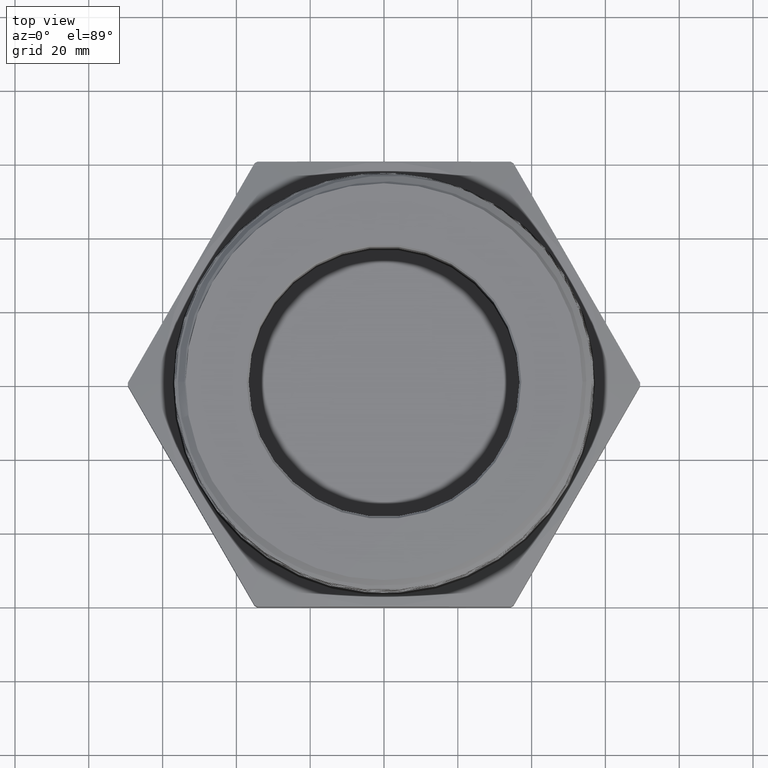
[diagram: clean part render]
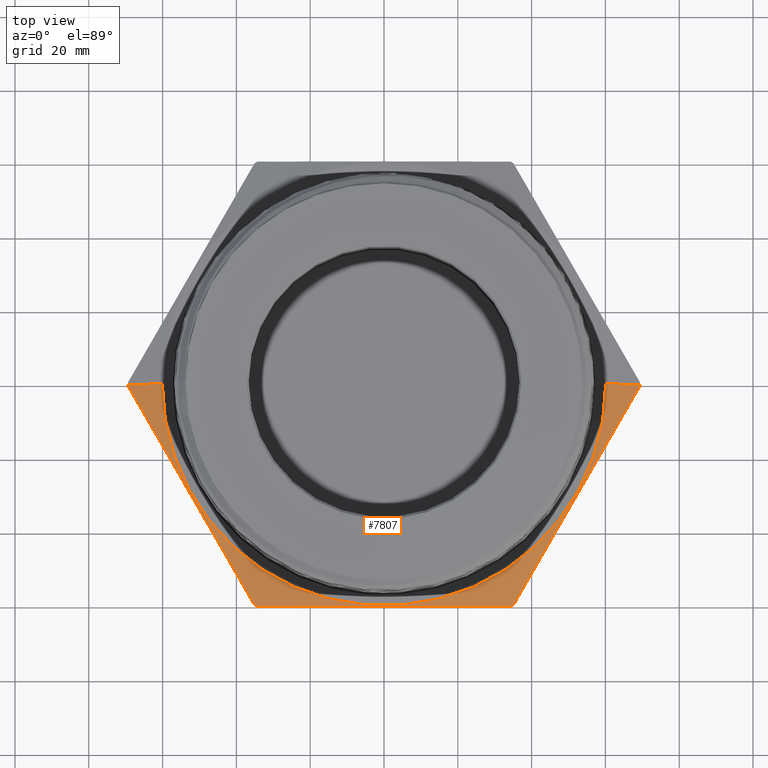
[diagram: same view with one face highlighted and labeled with its STEP entity id]
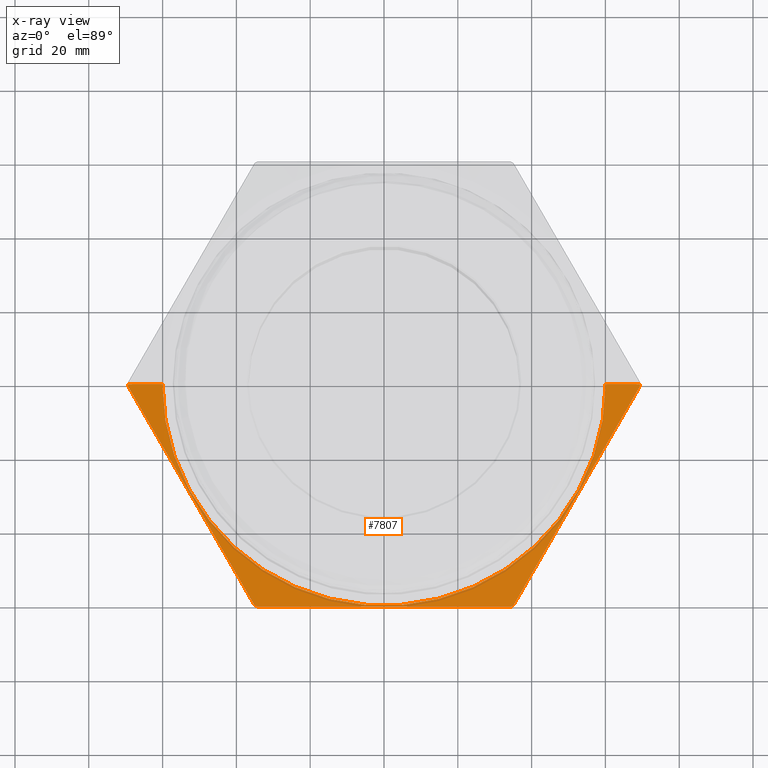
[diagram: x-ray of the same camera — body ghosted, the highlighted face saturated]
A machine part, top view. The second image highlights one B-rep face of the part: STEP entity #7807.
The next image is the same camera in x-ray: the body ghosted, the highlighted face saturated — about 0% of this face is hidden behind the body in this view.
In plain terms, the highlighted conical surface has half-angle 78 deg.
Its self-contained STEP definition (entity closure, byte-faithful):
#8 = B_SPLINE_CURVE_WITH_KNOTS ( 'NONE', 3,
 ( #7771, #7764, #7759, #7773, #7774, #7775, #7776, #7777, #7778 ),
 .UNSPECIFIED., .F., .F.,
 ( 4, 2, 1, 2, 4 ),
 ( 1.902859322829075700E-006, 0.01716082044511951400, 0.03431973803091619600, 0.05147865561671289400, 0.06863757320250960000 ),
 .UNSPECIFIED. ) ;
#10 = B_SPLINE_CURVE_WITH_KNOTS ( 'NONE', 3,
 ( #7781, #7780, #7770, #7782, #7783, #7784, #7785, #7786, #7727, #2749 ),
 .UNSPECIFIED., .F., .F.,
 ( 4, 2, 2, 2, 4 ),
 ( 0.1321518283053316200, 0.1493624693089034300, 0.1665731103124752400, 0.1837837513160470400, 0.2009943923196188500 ),
 .UNSPECIFIED. ) ;
#15 = B_SPLINE_CURVE_WITH_KNOTS ( 'NONE', 3,
 ( #2751, #2753, #2754, #2755, #2756, #2757, #2758, #2759, #2760 ),
 .UNSPECIFIED., .F., .F.,
 ( 4, 2, 1, 2, 4 ),
 ( 1.902859322808944500E-006, 0.01716082044511948300, 0.03431973803091615400, 0.05147865561671282500, 0.06863757320250947500 ),
 .UNSPECIFIED. ) ;
#593 = EDGE_CURVE ( 'NONE', #2007, #2011, #7986, .T. ) ;
#596 = EDGE_CURVE ( 'NONE', #1953, #2003, #7990, .T. ) ;
#603 = EDGE_CURVE ( 'NONE', #2008, #1958, #8, .T. ) ;
#604 = EDGE_CURVE ( 'NONE', #2011, #2004, #10, .T. ) ;
#605 = EDGE_CURVE ( 'NONE', #2003, #2007, #15, .T. ) ;
#643 = AXIS2_PLACEMENT_3D ( 'NONE', #5589, #5590, #5591 ) ;
#644 = AXIS2_PLACEMENT_3D ( 'NONE', #7755, #7756, #7757 ) ;
#685 = AXIS2_PLACEMENT_3D ( 'NONE', #2356, #2357, #2358 ) ;
#693 = AXIS2_PLACEMENT_3D ( 'NONE', #4129, #4130, #4131 ) ;
#696 = AXIS2_PLACEMENT_3D ( 'NONE', #4144, #4145, #4146 ) ;
#702 = AXIS2_PLACEMENT_3D ( 'NONE', #4186, #4187, #4185 ) ;
#1883 = ORIENTED_EDGE ( 'NONE', *, *, #605, .F. ) ;
#1884 = ORIENTED_EDGE ( 'NONE', *, *, #596, .F. ) ;
#1942 = VERTEX_POINT ( 'NONE', #2630 ) ;
#1953 = VERTEX_POINT ( 'NONE', #2643 ) ;
#1956 = VERTEX_POINT ( 'NONE', #2646 ) ;
#1958 = VERTEX_POINT ( 'NONE', #2648 ) ;
#2003 = VERTEX_POINT ( 'NONE', #2693 ) ;
#2004 = VERTEX_POINT ( 'NONE', #2694 ) ;
#2007 = VERTEX_POINT ( 'NONE', #2697 ) ;
#2008 = VERTEX_POINT ( 'NONE', #2698 ) ;
#2011 = VERTEX_POINT ( 'NONE', #2701 ) ;
#2033 = VERTEX_POINT ( 'NONE', #2723 ) ;
#2159 = EDGE_LOOP ( 'NONE', ( #7895, #7896, #7897, #7898, #7899, #7900, #7901, #7902, #1883, #1884 ) ) ;
#2347 = CARTESIAN_POINT ( 'NONE',  ( -2.365000000000000200, 0.0000000000000000000, 0.6700000000000000400 ) ) ;
#2352 = DIRECTION ( 'NONE',  ( -0.9781476007338071300, 0.0000000000000000000, -0.2079116908177526300 ) ) ;
#2356 = CARTESIAN_POINT ( 'NONE',  ( 7.248730824387821900E-017, 0.0000000000000000000, 0.5919037904998144500 ) ) ;
#2357 = DIRECTION ( 'NONE',  ( -1.224646799147351200E-016, -0.0000000000000000000, -1.000000000000000000 ) ) ;
#2358 = DIRECTION ( 'NONE',  ( -1.000000000000000000, 0.0000000000000000000, 1.249741169789656700E-016 ) ) ;
#2565 = DIRECTION ( 'NONE',  ( 0.9781476007338069100, 1.197885328332319900E-016, -0.2079116908177528500 ) ) ;
#2570 = CARTESIAN_POINT ( 'NONE',  ( 2.365000000000000200, 2.896289679983490900E-016, 0.6699999999999996000 ) ) ;
#2630 = CARTESIAN_POINT ( 'NONE',  ( 2.365000000000000200, 2.896289679983490900E-016, 0.6699999999999996000 ) ) ;
#2643 = CARTESIAN_POINT ( 'NONE',  ( 2.732413778650721900, 3.346241787970731400E-016, 0.5919037904998141200 ) ) ;
#2646 = CARTESIAN_POINT ( 'NONE',  ( -2.732413778650721900, 0.0000000000000000000, 0.5919037904998147900 ) ) ;
#2648 = CARTESIAN_POINT ( 'NONE',  ( -2.732358270436729100, -0.01741665112256062000, 0.5919037904998147900 ) ) ;
#2693 = CARTESIAN_POINT ( 'NONE',  ( 2.732358270436729100, -0.01741665112256157400, 0.5919037904998141200 ) ) ;
#2694 = CARTESIAN_POINT ( 'NONE',  ( -1.351095872897375400, -2.374999999999999600, 0.5919037904998145600 ) ) ;
#2697 = CARTESIAN_POINT ( 'NONE',  ( 1.381262397539353200, -2.357583348877438000, 0.5919037904998143400 ) ) ;
#2698 = CARTESIAN_POINT ( 'NONE',  ( -1.381262397539350500, -2.357583348877439800, 0.5919037904998145600 ) ) ;
#2701 = CARTESIAN_POINT ( 'NONE',  ( 1.351095872897375400, -2.374999999999999600, 0.5919037904998143400 ) ) ;
#2723 = CARTESIAN_POINT ( 'NONE',  ( -2.365000000000000200, 0.0000000000000000000, 0.6700000000000000400 ) ) ;
#2749 = CARTESIAN_POINT ( 'NONE',  ( -1.351095872897375400, -2.374999999999999600, 0.5919037904998145600 ) ) ;
#2751 = CARTESIAN_POINT ( 'NONE',  ( 2.732358270436729100, -0.01741665112256157400, 0.5919037904998141200 ) ) ;
#2753 = CARTESIAN_POINT ( 'NONE',  ( 2.619766947695282100, -0.2124305426021345100, 0.6155711132881341900 ) ) ;
#2754 = CARTESIAN_POINT ( 'NONE',  ( 2.507175624953833700, -0.4074444340817075000, 0.6347547542852914900 ) ) ;
#2755 = CARTESIAN_POINT ( 'NONE',  ( 2.281992979470937500, -0.7974722170408534700, 0.6609448966257888100 ) ) ;
#2756 = CARTESIAN_POINT ( 'NONE',  ( 2.056810333988041300, -1.187500000000000400, 0.6748039721408104500 ) ) ;
#2757 = CARTESIAN_POINT ( 'NONE',  ( 1.831627688505145000, -1.577527782959145000, 0.6609448966257888100 ) ) ;
#2758 = CARTESIAN_POINT ( 'NONE',  ( 1.606445043022249900, -1.967555565918291700, 0.6347547542852914900 ) ) ;
#2759 = CARTESIAN_POINT ( 'NONE',  ( 1.493853720280801100, -2.162569457397864000, 0.6155711132881341900 ) ) ;
#2760 = CARTESIAN_POINT ( 'NONE',  ( 1.381262397539353200, -2.357583348877438000, 0.5919037904998143400 ) ) ;
#3376 = CIRCLE ( 'NONE', #693, 2.365000000000000200 ) ;
#3404 = CIRCLE ( 'NONE', #696, 2.732413778650721900 ) ;
#3467 = FACE_OUTER_BOUND ( 'NONE', #2159, .T. ) ;
#3482 = CONICAL_SURFACE ( 'NONE', #702, 2.365000000000000200, 1.361356816555583800 ) ;
#3657 = EDGE_CURVE ( 'NONE', #1942, #1953, #8071, .T. ) ;
#3665 = EDGE_CURVE ( 'NONE', #2033, #1956, #8080, .T. ) ;
#3666 = EDGE_CURVE ( 'NONE', #1958, #1956, #8083, .T. ) ;
#3734 = EDGE_CURVE ( 'NONE', #1942, #2033, #3376, .T. ) ;
#3738 = EDGE_CURVE ( 'NONE', #2004, #2008, #3404, .T. ) ;
#4129 = CARTESIAN_POINT ( 'NONE',  ( 8.205133554287250800E-017, 0.0000000000000000000, 0.6699999999999998200 ) ) ;
#4130 = DIRECTION ( 'NONE',  ( -1.224646799147351200E-016, -0.0000000000000000000, -1.000000000000000000 ) ) ;
#4131 = DIRECTION ( 'NONE',  ( -1.000000000000000000, 0.0000000000000000000, 1.155115430724846900E-016 ) ) ;
#4144 = CARTESIAN_POINT ( 'NONE',  ( 7.248730824387821900E-017, 0.0000000000000000000, 0.5919037904998144500 ) ) ;
#4145 = DIRECTION ( 'NONE',  ( -1.224646799147351200E-016, -0.0000000000000000000, -1.000000000000000000 ) ) ;
#4146 = DIRECTION ( 'NONE',  ( -1.000000000000000000, 0.0000000000000000000, 1.249741169789656700E-016 ) ) ;
#4185 = DIRECTION ( 'NONE',  ( -1.000000000000000000, 0.0000000000000000000, 1.155115430724846900E-016 ) ) ;
#4186 = CARTESIAN_POINT ( 'NONE',  ( 8.205133554287250800E-017, 0.0000000000000000000, 0.6699999999999998200 ) ) ;
#4187 = DIRECTION ( 'NONE',  ( -1.224646799147351200E-016, -0.0000000000000000000, -1.000000000000000000 ) ) ;
#5589 = CARTESIAN_POINT ( 'NONE',  ( 7.248730824387821900E-017, 0.0000000000000000000, 0.5919037904998144500 ) ) ;
#5590 = DIRECTION ( 'NONE',  ( -1.224646799147351200E-016, -0.0000000000000000000, -1.000000000000000000 ) ) ;
#5591 = DIRECTION ( 'NONE',  ( -1.000000000000000000, 0.0000000000000000000, 1.249741169789656700E-016 ) ) ;
#7727 = CARTESIAN_POINT ( 'NONE',  ( -1.126096373971886100, -2.374999999999999600, 0.6155518640752016800 ) ) ;
#7755 = CARTESIAN_POINT ( 'NONE',  ( 7.248730824387821900E-017, 0.0000000000000000000, 0.5919037904998144500 ) ) ;
#7756 = DIRECTION ( 'NONE',  ( -1.224646799147351200E-016, -0.0000000000000000000, -1.000000000000000000 ) ) ;
#7757 = DIRECTION ( 'NONE',  ( -1.000000000000000000, 0.0000000000000000000, 1.249741169789656700E-016 ) ) ;
#7759 = CARTESIAN_POINT ( 'NONE',  ( -1.606445043022247400, -1.967555565918293500, 0.6347547542852916000 ) ) ;
#7764 = CARTESIAN_POINT ( 'NONE',  ( -1.493853720280799500, -2.162569457397866700, 0.6155711132881345200 ) ) ;
#7770 = CARTESIAN_POINT ( 'NONE',  ( 0.9015963571545638800, -2.374999999999999600, 0.6346844271234968200 ) ) ;
#7771 = CARTESIAN_POINT ( 'NONE',  ( -1.381262397539350500, -2.357583348877439800, 0.5919037904998145600 ) ) ;
#7773 = CARTESIAN_POINT ( 'NONE',  ( -1.831627688505143700, -1.577527782959146300, 0.6609448966257892600 ) ) ;
#7774 = CARTESIAN_POINT ( 'NONE',  ( -2.056810333988039900, -1.187500000000000900, 0.6748039721408111100 ) ) ;
#7775 = CARTESIAN_POINT ( 'NONE',  ( -2.281992979470937000, -0.7974722170408538000, 0.6609448966257895900 ) ) ;
#7776 = CARTESIAN_POINT ( 'NONE',  ( -2.507175624953833700, -0.4074444340817069400, 0.6347547542852918200 ) ) ;
#7777 = CARTESIAN_POINT ( 'NONE',  ( -2.619766947695282100, -0.2124305426021340600, 0.6155711132881350700 ) ) ;
#7778 = CARTESIAN_POINT ( 'NONE',  ( -2.732358270436729100, -0.01741665112256062000, 0.5919037904998147900 ) ) ;
#7780 = CARTESIAN_POINT ( 'NONE',  ( 1.126396036090907100, -2.374999999999998700, 0.6155203687524464200 ) ) ;
#7781 = CARTESIAN_POINT ( 'NONE',  ( 1.351095872897375400, -2.374999999999999600, 0.5919037904998143400 ) ) ;
#7782 = CARTESIAN_POINT ( 'NONE',  ( 0.4517250701887836100, -2.374999999999998700, 0.6608857022716129200 ) ) ;
#7783 = CARTESIAN_POINT ( 'NONE',  ( 0.2266517297341731600, -2.374999999999999600, 0.6678456605052298700 ) ) ;
#7784 = CARTESIAN_POINT ( 'NONE',  ( -0.2238058013334088300, -2.374999999999999600, 0.6679030270444223900 ) ) ;
#7785 = CARTESIAN_POINT ( 'NONE',  ( -0.4491900416486201400, -2.374999999999999600, 0.6609982188486877000 ) ) ;
#7786 = CARTESIAN_POINT ( 'NONE',  ( -0.9002363555214364400, -2.374999999999999600, 0.6347984617712125700 ) ) ;
#7807 = ADVANCED_FACE ( 'NONE', ( #3467 ), #3482, .T. ) ;
#7895 = ORIENTED_EDGE ( 'NONE', *, *, #3657, .F. ) ;
#7896 = ORIENTED_EDGE ( 'NONE', *, *, #3734, .T. ) ;
#7897 = ORIENTED_EDGE ( 'NONE', *, *, #3665, .T. ) ;
#7898 = ORIENTED_EDGE ( 'NONE', *, *, #3666, .F. ) ;
#7899 = ORIENTED_EDGE ( 'NONE', *, *, #603, .F. ) ;
#7900 = ORIENTED_EDGE ( 'NONE', *, *, #3738, .F. ) ;
#7901 = ORIENTED_EDGE ( 'NONE', *, *, #604, .F. ) ;
#7902 = ORIENTED_EDGE ( 'NONE', *, *, #593, .F. ) ;
#7986 = CIRCLE ( 'NONE', #643, 2.732413778650721900 ) ;
#7990 = CIRCLE ( 'NONE', #644, 2.732413778650721900 ) ;
#8071 = LINE ( 'NONE', #2570, #8082 ) ;
#8080 = LINE ( 'NONE', #2347, #8088 ) ;
#8082 = VECTOR ( 'NONE', #2565, 39.37007874015748100 ) ;
#8083 = CIRCLE ( 'NONE', #685, 2.732413778650721900 ) ;
#8088 = VECTOR ( 'NONE', #2352, 39.37007874015748900 ) ;